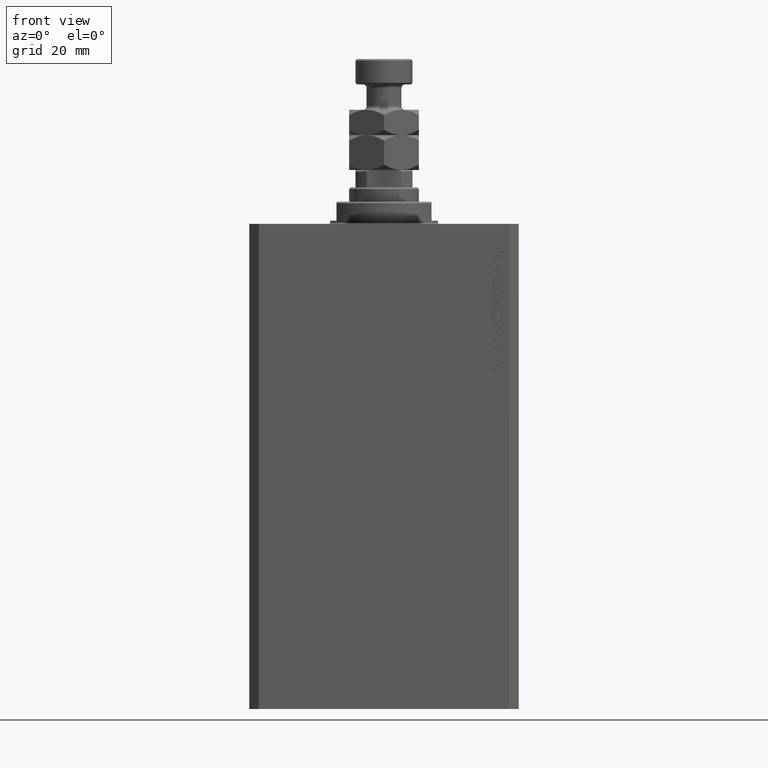
[diagram: clean part render]
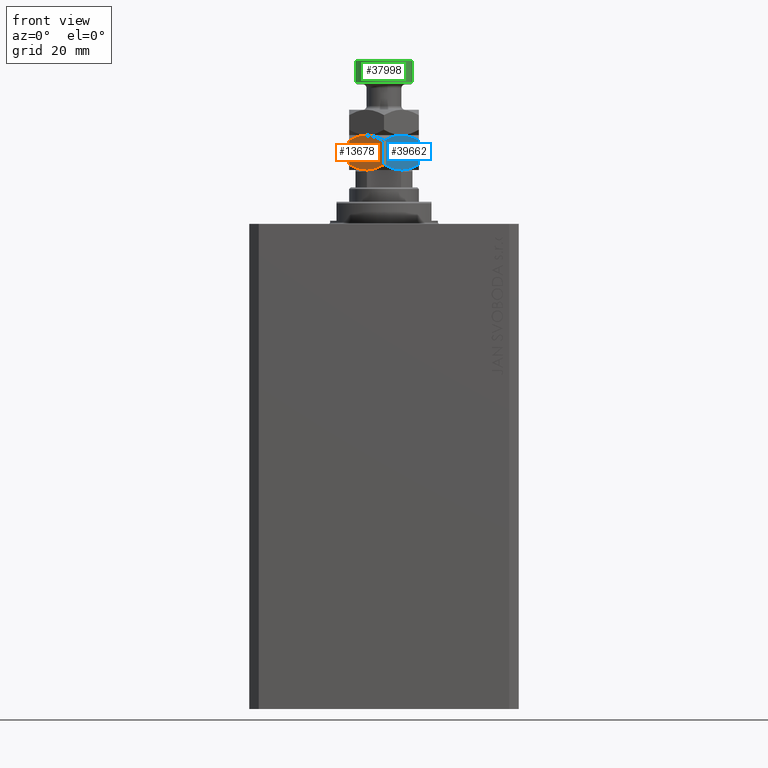
[diagram: same view with three faces highlighted in distinct colors, each labeled with its STEP entity id]
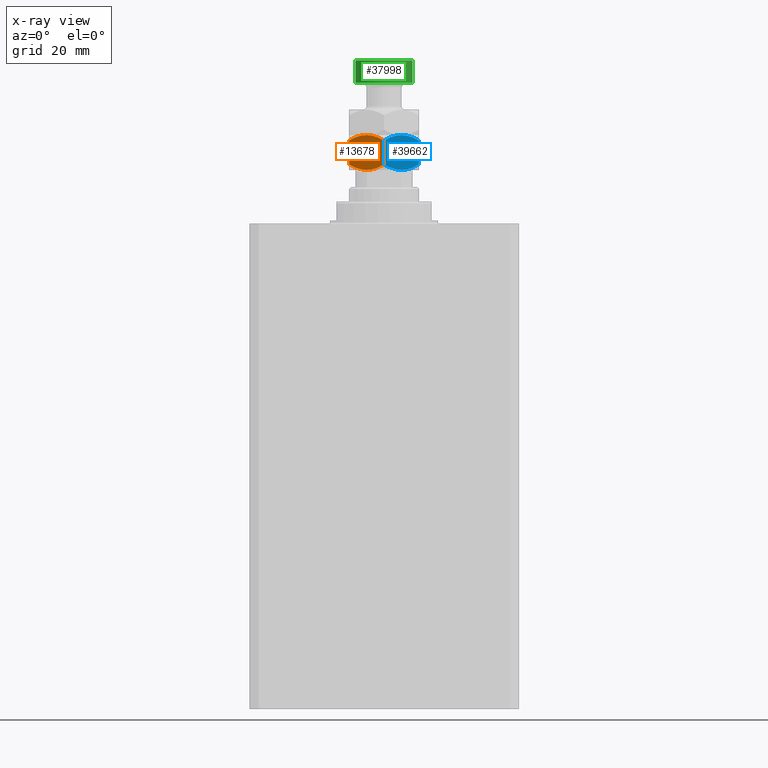
[diagram: x-ray of the same camera — body ghosted, the three highlighted faces saturated]
A machine part, front view with three faces highlighted in distinct colors.
The next image is the same camera in x-ray (body ghosted, the three faces saturated) — at least one of them is partly hidden behind the body in this view.
Their STEP definitions:

[orange] entity #13678 — the highlighted planar face has unit normal (0.5, 0.866, 0).
#535 = CARTESIAN_POINT ( 'NONE',  ( -5.499999999999998224, -9.526279441628826561, 0.000000000000000000 ) ) ;
#1570 = VERTEX_POINT ( 'NONE', #24093 ) ;
#2310 = CARTESIAN_POINT ( 'NONE',  ( -9.255521992360788985, -7.358027808391763180, 10.21937661245322282 ) ) ;
#3616 = CARTESIAN_POINT ( 'NONE',  ( -11.00000000000000000, -6.350852961085885262, 11.00000000000000000 ) ) ;
#3674 = B_SPLINE_CURVE_WITH_KNOTS ( 'NONE', 3,
 ( #535, #11296, #3813, #25573, #15278, #39815 ),
 .UNSPECIFIED., .F., .F.,
 ( 4, 2, 4 ),
 ( 0.006583488920348294290, 0.009852050593448706192, 0.01312061226654912156 ),
 .UNSPECIFIED. ) ;
#3813 = CARTESIAN_POINT ( 'NONE',  ( -7.397073880711848126, -8.431003325927232339, 0.1689086083647580172 ) ) ;
#5233 = VERTEX_POINT ( 'NONE', #32178 ) ;
#5830 = CARTESIAN_POINT ( 'NONE',  ( -11.00000000000000000, -6.350852961085885262, 9.298294077828238358 ) ) ;
#6584 = CARTESIAN_POINT ( 'NONE',  ( -2.056508384864602535E-15, -12.70170592217176342, 1.701705922171757868 ) ) ;
#6744 = CARTESIAN_POINT ( 'NONE',  ( -7.420105971005178880, -8.417705742396378810, 10.79187792513292798 ) ) ;
#9759 = EDGE_CURVE ( 'NONE', #1570, #44149, #26142, .T. ) ;
#9815 = FACE_OUTER_BOUND ( 'NONE', #17923, .T. ) ;
#10740 = PLANE ( 'NONE',  #23033 ) ;
#10904 = VERTEX_POINT ( 'NONE', #46072 ) ;
#11123 = VECTOR ( 'NONE', #13682, 1000.000000000000000 ) ;
#11296 = CARTESIAN_POINT ( 'NONE',  ( -6.456670474420573846, -8.973945485696338764, 4.698209414103847288E-16 ) ) ;
#11498 = CARTESIAN_POINT ( 'NONE',  ( -5.499999999999998224, -9.526279441628826561, 0.000000000000000000 ) ) ;
#12746 = CARTESIAN_POINT ( 'NONE',  ( -4.543329525579421713, -10.07861339756131080, 11.00000000000000355 ) ) ;
#12981 = CARTESIAN_POINT ( 'NONE',  ( -0.8614806024966442655, -12.20432986441868728, 9.795670135581394433 ) ) ;
#12987 = CARTESIAN_POINT ( 'NONE',  ( -1.735608132212364507E-15, -12.70170592217176342, 9.298294077828241910 ) ) ;
#13607 = ORIENTED_EDGE ( 'NONE', *, *, #35846, .F. ) ;
#13678 = ADVANCED_FACE ( 'NONE', ( #9815 ), #10740, .F. ) ;
#13682 = DIRECTION ( 'NONE',  ( -0.000000000000000000, -0.000000000000000000, -1.000000000000000000 ) ) ;
#14956 = B_SPLINE_CURVE_WITH_KNOTS ( 'NONE', 3,
 ( #37773, #12746, #23522, #44556, #12981, #19083 ),
 .UNSPECIFIED., .F., .F.,
 ( 4, 2, 4 ),
 ( 0.006583488920348300362, 0.009852050593448711396, 0.01312061226654912330 ),
 .UNSPECIFIED. ) ;
#15278 = CARTESIAN_POINT ( 'NONE',  ( -10.13851939750335696, -6.848229018838964954, 1.204329864418606011 ) ) ;
#16208 = B_SPLINE_CURVE_WITH_KNOTS ( 'NONE', 3,
 ( #5830, #20102, #2310, #16602, #6744, #21250, #35739, #38771 ),
 .UNSPECIFIED., .F., .F.,
 ( 4, 2, 2, 4 ),
 ( 2.544311317614349830E-07, 0.003291871675740028636, 0.004937680298044163849, 0.006583488920348300362 ),
 .UNSPECIFIED. ) ;
#16602 = CARTESIAN_POINT ( 'NONE',  ( -7.884967580346610383, -8.149317767107177701, 10.67178078790959184 ) ) ;
#16893 = CARTESIAN_POINT ( 'NONE',  ( -4.529374112020106757, -10.08667055933643653, 0.04365929743512406147 ) ) ;
#17430 = EDGE_CURVE ( 'NONE', #10904, #26499, #14956, .T. ) ;
#17923 = EDGE_LOOP ( 'NONE', ( #28483, #33501, #46104, #13607, #26641, #44074 ) ) ;
#18446 = EDGE_CURVE ( 'NONE', #5233, #26494, #38231, .T. ) ;
#19083 = CARTESIAN_POINT ( 'NONE',  ( -1.735608132212364507E-15, -12.70170592217176342, 9.298294077828241910 ) ) ;
#20102 = CARTESIAN_POINT ( 'NONE',  ( -10.13752086928278295, -6.848805519375901874, 9.796246636118254969 ) ) ;
#20280 = EDGE_CURVE ( 'NONE', #44149, #26494, #3674, .T. ) ;
#20398 = CARTESIAN_POINT ( 'NONE',  ( -3.115032419653387397, -10.90324111615046832, 0.3282192120904052768 ) ) ;
#21250 = CARTESIAN_POINT ( 'NONE',  ( -6.470625887979892354, -8.965888323921213043, 10.95634070256487647 ) ) ;
#23033 = AXIS2_PLACEMENT_3D ( 'NONE', #27597, #38571, #31553 ) ;
#23522 = CARTESIAN_POINT ( 'NONE',  ( -3.602926119288152318, -10.62155555733041901, 10.83109139163524581 ) ) ;
#23633 = VECTOR ( 'NONE', #44205, 1000.000000000000000 ) ;
#23636 = LINE ( 'NONE', #40705, #23633 ) ;
#24093 = CARTESIAN_POINT ( 'NONE',  ( -2.056508384864602535E-15, -12.70170592217176342, 1.701705922171757868 ) ) ;
#25573 = CARTESIAN_POINT ( 'NONE',  ( -9.251785468064189999, -7.360185091700237159, 0.7776848045220270400 ) ) ;
#26142 = B_SPLINE_CURVE_WITH_KNOTS ( 'NONE', 3,
 ( #6584, #41671, #38150, #20398, #34646, #16893, #31145, #34875 ),
 .UNSPECIFIED., .F., .F.,
 ( 4, 2, 2, 4 ),
 ( 2.544311317621743898E-07, 0.003291871675740028202, 0.004937680298044160379, 0.006583488920348294290 ),
 .UNSPECIFIED. ) ;
#26494 = VERTEX_POINT ( 'NONE', #40359 ) ;
#26499 = VERTEX_POINT ( 'NONE', #12987 ) ;
#26641 = ORIENTED_EDGE ( 'NONE', *, *, #18446, .T. ) ;
#27597 = CARTESIAN_POINT ( 'NONE',  ( -11.00000000000000000, -6.350852961085885262, 11.00000000000000000 ) ) ;
#28483 = ORIENTED_EDGE ( 'NONE', *, *, #9759, .F. ) ;
#31145 = CARTESIAN_POINT ( 'NONE',  ( -5.018290712253360653, -9.804394428580497589, 4.082698805765729113E-16 ) ) ;
#31553 = DIRECTION ( 'NONE',  ( -0.8660254037844387076, 0.4999999999999998335, 0.000000000000000000 ) ) ;
#32178 = CARTESIAN_POINT ( 'NONE',  ( -11.00000000000000000, -6.350852961085885262, 9.298294077828238358 ) ) ;
#33501 = ORIENTED_EDGE ( 'NONE', *, *, #43368, .F. ) ;
#34646 = CARTESIAN_POINT ( 'NONE',  ( -3.579894028994819788, -10.63485314086127254, 0.2081220748670717380 ) ) ;
#34875 = CARTESIAN_POINT ( 'NONE',  ( -5.499999999999998224, -9.526279441628826561, 0.000000000000000000 ) ) ;
#35739 = CARTESIAN_POINT ( 'NONE',  ( -5.981709287746638459, -9.248164454677157309, 11.00000000000000000 ) ) ;
#35846 = EDGE_CURVE ( 'NONE', #5233, #10904, #16208, .T. ) ;
#37773 = CARTESIAN_POINT ( 'NONE',  ( -5.499999999999999112, -9.526279441628828337, 11.00000000000000000 ) ) ;
#38150 = CARTESIAN_POINT ( 'NONE',  ( -1.744478007639210349, -11.69453107486588550, 0.7806233875467739614 ) ) ;
#38231 = LINE ( 'NONE', #3616, #11123 ) ;
#38571 = DIRECTION ( 'NONE',  ( 0.4999999999999998335, 0.8660254037844387076, -0.000000000000000000 ) ) ;
#38771 = CARTESIAN_POINT ( 'NONE',  ( -5.499999999999999112, -9.526279441628828337, 11.00000000000000000 ) ) ;
#39815 = CARTESIAN_POINT ( 'NONE',  ( -11.00000000000000000, -6.350852961085885262, 1.701705922171762309 ) ) ;
#40359 = CARTESIAN_POINT ( 'NONE',  ( -11.00000000000000000, -6.350852961085885262, 1.701705922171762309 ) ) ;
#40705 = CARTESIAN_POINT ( 'NONE',  ( -2.168404344971008868E-15, -12.70170592217176342, 11.00000000000000000 ) ) ;
#41671 = CARTESIAN_POINT ( 'NONE',  ( -0.8624791307172157140, -12.20375336388174503, 1.203753363881743033 ) ) ;
#43368 = EDGE_CURVE ( 'NONE', #26499, #1570, #23636, .T. ) ;
#44074 = ORIENTED_EDGE ( 'NONE', *, *, #20280, .F. ) ;
#44149 = VERTEX_POINT ( 'NONE', #11498 ) ;
#44205 = DIRECTION ( 'NONE',  ( -0.000000000000000000, -0.000000000000000000, -1.000000000000000000 ) ) ;
#44556 = CARTESIAN_POINT ( 'NONE',  ( -1.748214531935809335, -11.69237379155741330, 10.22231519547797518 ) ) ;
#46072 = CARTESIAN_POINT ( 'NONE',  ( -5.499999999999999112, -9.526279441628828337, 11.00000000000000000 ) ) ;
#46104 = ORIENTED_EDGE ( 'NONE', *, *, #17430, .F. ) ;

[blue] entity #39662 — the highlighted planar face has unit normal (-0.5, 0.866, 0).
#774 = CARTESIAN_POINT ( 'NONE',  ( 5.018290712253354435, -9.804394428580495813, 11.00000000000000178 ) ) ;
#1570 = VERTEX_POINT ( 'NONE', #24093 ) ;
#1612 = CARTESIAN_POINT ( 'NONE',  ( 4.543329525579419936, -10.07861339756131258, -1.661878642512936674E-15 ) ) ;
#2227 = CARTESIAN_POINT ( 'NONE',  ( 5.499999999999994671, -9.526279441628823008, 11.00000000000000000 ) ) ;
#2589 = VECTOR ( 'NONE', #40321, 1000.000000000000000 ) ;
#4173 = B_SPLINE_CURVE_WITH_KNOTS ( 'NONE', 3,
 ( #34128, #1612, #12138, #30623, #36941, #44877 ),
 .UNSPECIFIED., .F., .F.,
 ( 4, 2, 4 ),
 ( 0.006583488920348303831, 0.009852050593448714866, 0.01312061226654912503 ),
 .UNSPECIFIED. ) ;
#5227 = CARTESIAN_POINT ( 'NONE',  ( 11.00000000000000000, -6.350852961085885262, 11.00000000000000000 ) ) ;
#5405 = CARTESIAN_POINT ( 'NONE',  ( 5.499999999999996447, -9.526279441628828337, 0.000000000000000000 ) ) ;
#8560 = CARTESIAN_POINT ( 'NONE',  ( 11.00000000000000000, -6.350852961085885262, 9.298294077828238358 ) ) ;
#9184 = VERTEX_POINT ( 'NONE', #40563 ) ;
#9827 = CARTESIAN_POINT ( 'NONE',  ( 7.420105971005177992, -8.417705742396378810, 0.2081220748670716547 ) ) ;
#11009 = CARTESIAN_POINT ( 'NONE',  ( -2.168404344971008868E-15, -12.70170592217176342, 11.00000000000000000 ) ) ;
#12056 = CARTESIAN_POINT ( 'NONE',  ( 9.251785468064188223, -7.360185091700238935, 10.22231519547797163 ) ) ;
#12138 = CARTESIAN_POINT ( 'NONE',  ( 3.602926119288148321, -10.62155555733041545, 0.1689086083647563796 ) ) ;
#12289 = CARTESIAN_POINT ( 'NONE',  ( 7.397073880711846350, -8.431003325927232339, 10.83109139163524404 ) ) ;
#12603 = VERTEX_POINT ( 'NONE', #46088 ) ;
#12987 = CARTESIAN_POINT ( 'NONE',  ( -1.735608132212364507E-15, -12.70170592217176342, 9.298294077828241910 ) ) ;
#13334 = CARTESIAN_POINT ( 'NONE',  ( 11.00000000000000000, -6.350852961085885262, 1.701705922171761864 ) ) ;
#13814 = AXIS2_PLACEMENT_3D ( 'NONE', #11009, #29015, #17564 ) ;
#15374 = ORIENTED_EDGE ( 'NONE', *, *, #38312, .F. ) ;
#16404 = CARTESIAN_POINT ( 'NONE',  ( 6.470625887979890578, -8.965888323921214820, 0.04365929743512345085 ) ) ;
#17564 = DIRECTION ( 'NONE',  ( -0.8660254037844388186, -0.4999999999999996669, 0.000000000000000000 ) ) ;
#17854 = CARTESIAN_POINT ( 'NONE',  ( 4.529374112020102316, -10.08667055933643475, 10.95634070256488179 ) ) ;
#18592 = LINE ( 'NONE', #5227, #2589 ) ;
#19911 = CARTESIAN_POINT ( 'NONE',  ( 9.255521992360788985, -7.358027808391763180, 0.7806233875467720740 ) ) ;
#20615 = EDGE_CURVE ( 'NONE', #12603, #1570, #4173, .T. ) ;
#21047 = ORIENTED_EDGE ( 'NONE', *, *, #44806, .F. ) ;
#21598 = CARTESIAN_POINT ( 'NONE',  ( 5.499999999999994671, -9.526279441628823008, 11.00000000000000000 ) ) ;
#21837 = CARTESIAN_POINT ( 'NONE',  ( -1.735608132212364507E-15, -12.70170592217176342, 9.298294077828241910 ) ) ;
#23292 = EDGE_LOOP ( 'NONE', ( #34130, #15374, #21047, #26745, #24620, #39868 ) ) ;
#23398 = B_SPLINE_CURVE_WITH_KNOTS ( 'NONE', 3,
 ( #21837, #25816, #36328, #36092, #32809, #17854, #774, #21598 ),
 .UNSPECIFIED., .F., .F.,
 ( 4, 2, 2, 4 ),
 ( 2.544311317609507449E-07, 0.003291871675740027335, 0.004937680298044161246, 0.006583488920348296025 ),
 .UNSPECIFIED. ) ;
#23425 = B_SPLINE_CURVE_WITH_KNOTS ( 'NONE', 3,
 ( #2227, #30539, #12289, #12056, #26341, #8560 ),
 .UNSPECIFIED., .F., .F.,
 ( 4, 2, 4 ),
 ( 0.006583488920348296025, 0.009852050593448711396, 0.01312061226654912677 ),
 .UNSPECIFIED. ) ;
#23633 = VECTOR ( 'NONE', #44205, 1000.000000000000000 ) ;
#23636 = LINE ( 'NONE', #40705, #23633 ) ;
#24093 = CARTESIAN_POINT ( 'NONE',  ( -2.056508384864602535E-15, -12.70170592217176342, 1.701705922171757868 ) ) ;
#24620 = ORIENTED_EDGE ( 'NONE', *, *, #43368, .T. ) ;
#25221 = VERTEX_POINT ( 'NONE', #43467 ) ;
#25816 = CARTESIAN_POINT ( 'NONE',  ( 0.8624791307172111621, -12.20375336388174503, 9.796246636118258522 ) ) ;
#26341 = CARTESIAN_POINT ( 'NONE',  ( 10.13851939750335696, -6.848229018838962290, 9.795670135581396210 ) ) ;
#26499 = VERTEX_POINT ( 'NONE', #12987 ) ;
#26745 = ORIENTED_EDGE ( 'NONE', *, *, #36784, .F. ) ;
#27533 = CARTESIAN_POINT ( 'NONE',  ( 5.499999999999994671, -9.526279441628823008, 11.00000000000000000 ) ) ;
#28323 = FACE_OUTER_BOUND ( 'NONE', #23292, .T. ) ;
#29015 = DIRECTION ( 'NONE',  ( -0.4999999999999996669, 0.8660254037844388186, 0.000000000000000000 ) ) ;
#29622 = VERTEX_POINT ( 'NONE', #27533 ) ;
#30539 = CARTESIAN_POINT ( 'NONE',  ( 6.456670474420572070, -8.973945485696336988, 11.00000000000000711 ) ) ;
#30623 = CARTESIAN_POINT ( 'NONE',  ( 1.748214531935804672, -11.69237379155741330, 0.7776848045220248196 ) ) ;
#32809 = CARTESIAN_POINT ( 'NONE',  ( 3.579894028994816235, -10.63485314086127431, 10.79187792513292798 ) ) ;
#34128 = CARTESIAN_POINT ( 'NONE',  ( 5.499999999999996447, -9.526279441628828337, 0.000000000000000000 ) ) ;
#34130 = ORIENTED_EDGE ( 'NONE', *, *, #34358, .F. ) ;
#34358 = EDGE_CURVE ( 'NONE', #25221, #12603, #40746, .T. ) ;
#35324 = PLANE ( 'NONE',  #13814 ) ;
#36092 = CARTESIAN_POINT ( 'NONE',  ( 3.115032419653385176, -10.90324111615047364, 10.67178078790959717 ) ) ;
#36328 = CARTESIAN_POINT ( 'NONE',  ( 1.744478007639205241, -11.69453107486588728, 10.21937661245323170 ) ) ;
#36784 = EDGE_CURVE ( 'NONE', #26499, #29622, #23398, .T. ) ;
#36941 = CARTESIAN_POINT ( 'NONE',  ( 0.8614806024966409348, -12.20432986441868550, 1.204329864418603124 ) ) ;
#37433 = CARTESIAN_POINT ( 'NONE',  ( 5.981709287746637571, -9.248164454677159085, -1.733029410082298494E-15 ) ) ;
#37671 = CARTESIAN_POINT ( 'NONE',  ( 7.884967580346608607, -8.149317767107183030, 0.3282192120904023902 ) ) ;
#38127 = CARTESIAN_POINT ( 'NONE',  ( 10.13752086928278118, -6.848805519375901874, 1.203753363881747029 ) ) ;
#38312 = EDGE_CURVE ( 'NONE', #9184, #25221, #18592, .T. ) ;
#39662 = ADVANCED_FACE ( 'NONE', ( #28323 ), #35324, .F. ) ;
#39868 = ORIENTED_EDGE ( 'NONE', *, *, #20615, .F. ) ;
#40321 = DIRECTION ( 'NONE',  ( -0.000000000000000000, -0.000000000000000000, -1.000000000000000000 ) ) ;
#40563 = CARTESIAN_POINT ( 'NONE',  ( 11.00000000000000000, -6.350852961085885262, 9.298294077828238358 ) ) ;
#40705 = CARTESIAN_POINT ( 'NONE',  ( -2.168404344971008868E-15, -12.70170592217176342, 11.00000000000000000 ) ) ;
#40746 = B_SPLINE_CURVE_WITH_KNOTS ( 'NONE', 3,
 ( #13334, #38127, #19911, #37671, #9827, #16404, #37433, #5405 ),
 .UNSPECIFIED., .F., .F.,
 ( 4, 2, 2, 4 ),
 ( 2.544311317612473652E-07, 0.003291871675740032539, 0.004937680298044168185, 0.006583488920348303831 ),
 .UNSPECIFIED. ) ;
#43368 = EDGE_CURVE ( 'NONE', #26499, #1570, #23636, .T. ) ;
#43467 = CARTESIAN_POINT ( 'NONE',  ( 11.00000000000000000, -6.350852961085885262, 1.701705922171761864 ) ) ;
#44205 = DIRECTION ( 'NONE',  ( -0.000000000000000000, -0.000000000000000000, -1.000000000000000000 ) ) ;
#44806 = EDGE_CURVE ( 'NONE', #29622, #9184, #23425, .T. ) ;
#44877 = CARTESIAN_POINT ( 'NONE',  ( -2.056508384864602535E-15, -12.70170592217176342, 1.701705922171757868 ) ) ;
#46088 = CARTESIAN_POINT ( 'NONE',  ( 5.499999999999996447, -9.526279441628828337, 0.000000000000000000 ) ) ;

[green] entity #37998 — the highlighted cylindrical surface (edge-blend (fillet) strip) has radius 9 mm, axis along (-0, -0, -1).
#3628 = VERTEX_POINT ( 'NONE', #17730 ) ;
#4601 = CIRCLE ( 'NONE', #5328, 9.000000000000000000 ) ;
#5328 = AXIS2_PLACEMENT_3D ( 'NONE', #19197, #12146, #26435 ) ;
#5350 = ORIENTED_EDGE ( 'NONE', *, *, #26980, .T. ) ;
#8527 = ORIENTED_EDGE ( 'NONE', *, *, #25317, .T. ) ;
#8568 = DIRECTION ( 'NONE',  ( -0.000000000000000000, -0.000000000000000000, -1.000000000000000000 ) ) ;
#12146 = DIRECTION ( 'NONE',  ( -0.000000000000000000, -0.000000000000000000, 1.000000000000000000 ) ) ;
#12533 = CYLINDRICAL_SURFACE ( 'NONE', #17485, 9.000000000000000000 ) ;
#13239 = EDGE_LOOP ( 'NONE', ( #21078, #5350, #8527, #35402 ) ) ;
#13703 = DIRECTION ( 'NONE',  ( -0.000000000000000000, -0.000000000000000000, -1.000000000000000000 ) ) ;
#15026 = VECTOR ( 'NONE', #30583, 1000.000000000000000 ) ;
#15461 = CARTESIAN_POINT ( 'NONE',  ( -9.000000000000000000, 0.000000000000000000, 34.49999999999999289 ) ) ;
#17485 = AXIS2_PLACEMENT_3D ( 'NONE', #44102, #8568, #22834 ) ;
#17730 = CARTESIAN_POINT ( 'NONE',  ( 9.000000000000000000, 1.102182119232617714E-15, 27.50000000000000000 ) ) ;
#19197 = CARTESIAN_POINT ( 'NONE',  ( 0.000000000000000000, 0.000000000000000000, 27.50000000000000000 ) ) ;
#19826 = EDGE_CURVE ( 'NONE', #34442, #3628, #28432, .T. ) ;
#21078 = ORIENTED_EDGE ( 'NONE', *, *, #19826, .F. ) ;
#22834 = DIRECTION ( 'NONE',  ( -1.000000000000000000, 0.000000000000000000, 0.000000000000000000 ) ) ;
#23262 = AXIS2_PLACEMENT_3D ( 'NONE', #23717, #44980, #34689 ) ;
#23717 = CARTESIAN_POINT ( 'NONE',  ( 0.000000000000000000, 0.000000000000000000, 34.49999999999999289 ) ) ;
#25317 = EDGE_CURVE ( 'NONE', #41364, #40916, #30357, .T. ) ;
#26435 = DIRECTION ( 'NONE',  ( 1.000000000000000000, 0.000000000000000000, 0.000000000000000000 ) ) ;
#26889 = EDGE_CURVE ( 'NONE', #40916, #3628, #4601, .T. ) ;
#26980 = EDGE_CURVE ( 'NONE', #34442, #41364, #28512, .T. ) ;
#28432 = LINE ( 'NONE', #35207, #35789 ) ;
#28512 = CIRCLE ( 'NONE', #23262, 9.000000000000000000 ) ;
#29848 = FACE_OUTER_BOUND ( 'NONE', #13239, .T. ) ;
#30357 = LINE ( 'NONE', #40877, #15026 ) ;
#30583 = DIRECTION ( 'NONE',  ( -0.000000000000000000, -0.000000000000000000, -1.000000000000000000 ) ) ;
#34442 = VERTEX_POINT ( 'NONE', #41649 ) ;
#34689 = DIRECTION ( 'NONE',  ( 1.000000000000000000, 0.000000000000000000, 0.000000000000000000 ) ) ;
#35207 = CARTESIAN_POINT ( 'NONE',  ( 9.000000000000000000, 1.102182119232617714E-15, 35.00000000000000000 ) ) ;
#35402 = ORIENTED_EDGE ( 'NONE', *, *, #26889, .T. ) ;
#35789 = VECTOR ( 'NONE', #13703, 1000.000000000000000 ) ;
#35867 = CARTESIAN_POINT ( 'NONE',  ( -9.000000000000000000, 0.000000000000000000, 27.50000000000000000 ) ) ;
#37998 = ADVANCED_FACE ( 'NONE', ( #29848 ), #12533, .T. ) ;
#40877 = CARTESIAN_POINT ( 'NONE',  ( -9.000000000000000000, 0.000000000000000000, 35.00000000000000000 ) ) ;
#40916 = VERTEX_POINT ( 'NONE', #35867 ) ;
#41364 = VERTEX_POINT ( 'NONE', #15461 ) ;
#41649 = CARTESIAN_POINT ( 'NONE',  ( 9.000000000000000000, 1.102182119232617714E-15, 34.49999999999999289 ) ) ;
#44102 = CARTESIAN_POINT ( 'NONE',  ( 0.000000000000000000, 0.000000000000000000, 35.00000000000000000 ) ) ;
#44980 = DIRECTION ( 'NONE',  ( 0.000000000000000000, 0.000000000000000000, -1.000000000000000000 ) ) ;